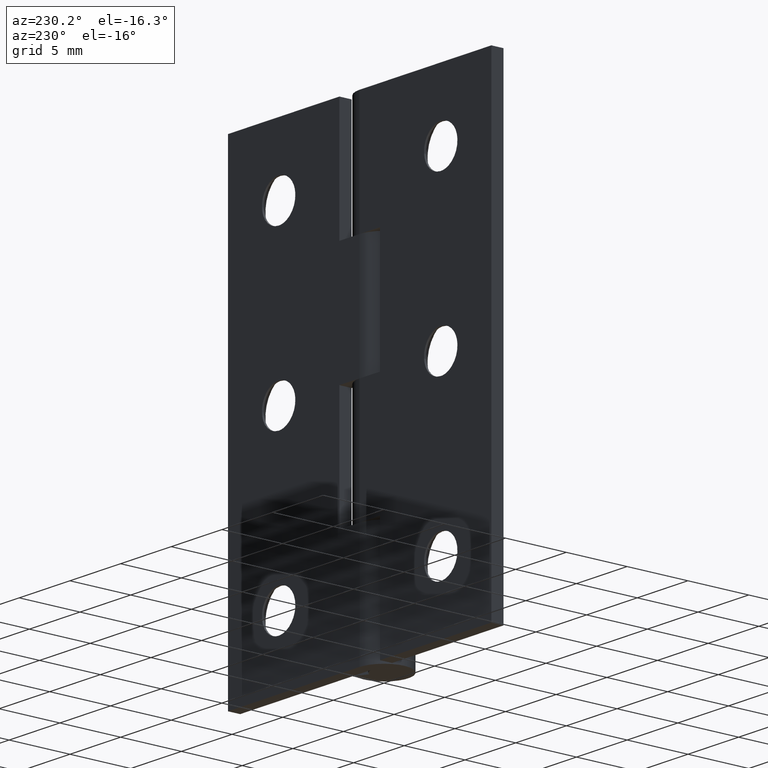
[diagram: clean part render]
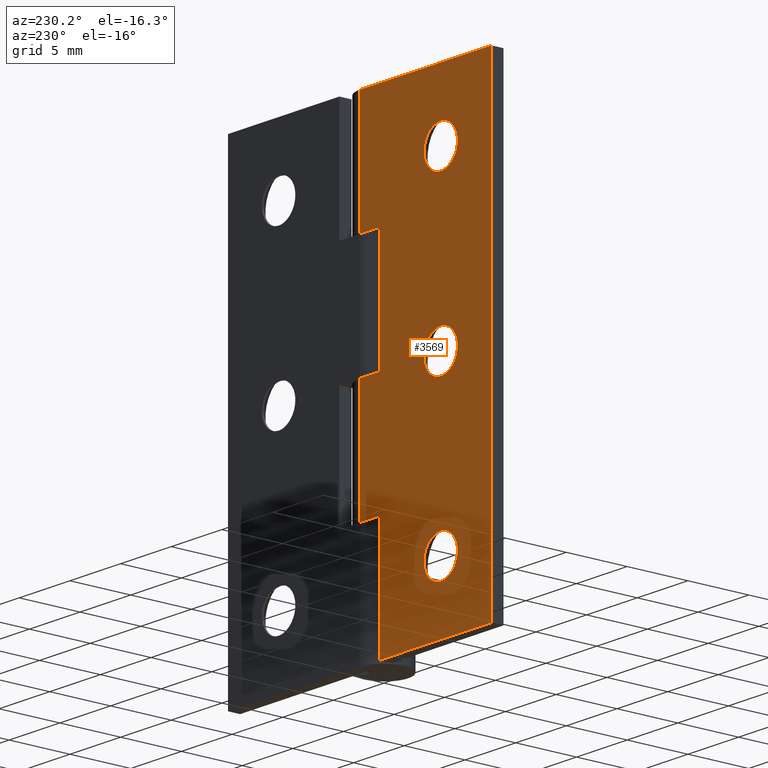
[diagram: same view with one face highlighted and labeled with its STEP entity id]
A machine part, auxiliary view. The second image highlights one B-rep face of the part: STEP entity #3569.
In plain terms, the highlighted face is a freeform B-spline surface patch.
Its self-contained STEP definition (entity closure, byte-faithful):
#2228=CARTESIAN_POINT('',(-6.355086399345368,2.0,32.370542491985169));
#2229=VERTEX_POINT('',#2228);
#2235=CARTESIAN_POINT('',(-8.0,2.0,30.850000000000001));
#2236=VERTEX_POINT('',#2235);
#2237=CARTESIAN_POINT('',(-8.0,2.0,30.850000000000001));
#2238=CARTESIAN_POINT('',(-6.474755688882801,2.000000000000000,30.850000000000012));
#2239=CARTESIAN_POINT('',(-6.355086399345368,2.000000000000000,32.370542491985169));
#2247=(BOUNDED_CURVE()B_SPLINE_CURVE(2,(#2237,#2238,#2239),.UNSPECIFIED.,.F.,.U.)B_SPLINE_CURVE_WITH_KNOTS((3,3),(0.0,0.236331300619451),.UNSPECIFIED.)CURVE()GEOMETRIC_REPRESENTATION_ITEM()RATIONAL_B_SPLINE_CURVE((1.0,0.723120658620797,0.969723356144027))REPRESENTATION_ITEM(''));
#2248=EDGE_CURVE('',#2236,#2229,#2247,.T.);
#2250=CARTESIAN_POINT('',(-9.644913600654633,2.0,32.629457508014838));
#2251=VERTEX_POINT('',#2250);
#2252=CARTESIAN_POINT('',(-9.644913600654633,2.0,32.629457508014838));
#2253=CARTESIAN_POINT('',(-9.650000000000000,2.000000000000000,32.564828676626838));
#2254=CARTESIAN_POINT('',(-9.650000000000000,2.0,32.500000000000000));
#2255=CARTESIAN_POINT('',(-9.650000000000000,2.000000000000000,30.850000000000009));
#2256=CARTESIAN_POINT('',(-8.0,2.0,30.850000000000001));
#2264=(BOUNDED_CURVE()B_SPLINE_CURVE(2,(#2252,#2253,#2254,#2255,#2256),.UNSPECIFIED.,.F.,.U.)B_SPLINE_CURVE_WITH_KNOTS((3,2,3),(0.736331300619451,0.750000000000000,1.0),.UNSPECIFIED.)CURVE()GEOMETRIC_REPRESENTATION_ITEM()RATIONAL_B_SPLINE_CURVE((0.969723356144025,0.983986122565750,1.0,0.707106781186548,1.0))REPRESENTATION_ITEM(''));
#2265=EDGE_CURVE('',#2251,#2236,#2264,.T.);
#2302=CARTESIAN_POINT('',(-8.0,2.0,34.149999999999999));
#2303=VERTEX_POINT('',#2302);
#2304=CARTESIAN_POINT('',(-8.0,2.0,34.149999999999999));
#2305=CARTESIAN_POINT('',(-9.525244311117190,2.000000000000000,34.150000000000006));
#2306=CARTESIAN_POINT('',(-9.644913600654633,2.000000000000000,32.629457508014838));
#2314=(BOUNDED_CURVE()B_SPLINE_CURVE(2,(#2304,#2305,#2306),.UNSPECIFIED.,.F.,.U.)B_SPLINE_CURVE_WITH_KNOTS((3,3),(0.500000000000000,0.736331300619450),.UNSPECIFIED.)CURVE()GEOMETRIC_REPRESENTATION_ITEM()RATIONAL_B_SPLINE_CURVE((1.0,0.723120658620798,0.969723356144024))REPRESENTATION_ITEM(''));
#2315=EDGE_CURVE('',#2303,#2251,#2314,.T.);
#2317=CARTESIAN_POINT('',(-6.355086399345368,2.000000000000000,32.370542491985162));
#2318=CARTESIAN_POINT('',(-6.350000000000000,2.000000000000000,32.435171323373169));
#2319=CARTESIAN_POINT('',(-6.350000000000000,2.0,32.500000000000000));
#2320=CARTESIAN_POINT('',(-6.350000000000000,2.000000000000000,34.149999999999999));
#2321=CARTESIAN_POINT('',(-8.0,2.0,34.149999999999999));
#2329=(BOUNDED_CURVE()B_SPLINE_CURVE(2,(#2317,#2318,#2319,#2320,#2321),.UNSPECIFIED.,.F.,.U.)B_SPLINE_CURVE_WITH_KNOTS((3,2,3),(0.236331300619451,0.250000000000000,0.500000000000000),.UNSPECIFIED.)CURVE()GEOMETRIC_REPRESENTATION_ITEM()RATIONAL_B_SPLINE_CURVE((0.969723356144026,0.983986122565750,1.0,0.707106781186548,1.0))REPRESENTATION_ITEM(''));
#2330=EDGE_CURVE('',#2229,#2303,#2329,.T.);
#2556=CARTESIAN_POINT('',(-6.355086399345368,2.0,18.870542491985169));
#2557=VERTEX_POINT('',#2556);
#2563=CARTESIAN_POINT('',(-8.0,2.0,17.350000000000001));
#2564=VERTEX_POINT('',#2563);
#2565=CARTESIAN_POINT('',(-8.0,2.0,17.350000000000001));
#2566=CARTESIAN_POINT('',(-6.474755688882805,2.000000000000000,17.349999999999998));
#2567=CARTESIAN_POINT('',(-6.355086399345368,2.0,18.870542491985169));
#2575=(BOUNDED_CURVE()B_SPLINE_CURVE(2,(#2565,#2566,#2567),.UNSPECIFIED.,.F.,.U.)B_SPLINE_CURVE_WITH_KNOTS((3,3),(0.0,0.236331300619451),.UNSPECIFIED.)CURVE()GEOMETRIC_REPRESENTATION_ITEM()RATIONAL_B_SPLINE_CURVE((1.0,0.723120658620798,0.969723356144025))REPRESENTATION_ITEM(''));
#2576=EDGE_CURVE('',#2564,#2557,#2575,.T.);
#2578=CARTESIAN_POINT('',(-9.644913600654633,2.0,19.129457508014831));
#2579=VERTEX_POINT('',#2578);
#2580=CARTESIAN_POINT('',(-9.644913600654633,2.0,19.129457508014834));
#2581=CARTESIAN_POINT('',(-9.650000000000000,2.000000000000000,19.064828676626842));
#2582=CARTESIAN_POINT('',(-9.650000000000000,2.0,19.0));
#2583=CARTESIAN_POINT('',(-9.650000000000000,2.000000000000000,17.350000000000001));
#2584=CARTESIAN_POINT('',(-8.0,2.0,17.350000000000001));
#2592=(BOUNDED_CURVE()B_SPLINE_CURVE(2,(#2580,#2581,#2582,#2583,#2584),.UNSPECIFIED.,.F.,.U.)B_SPLINE_CURVE_WITH_KNOTS((3,2,3),(0.736331300619451,0.750000000000000,1.0),.UNSPECIFIED.)CURVE()GEOMETRIC_REPRESENTATION_ITEM()RATIONAL_B_SPLINE_CURVE((0.969723356144025,0.983986122565750,1.0,0.707106781186548,1.0))REPRESENTATION_ITEM(''));
#2593=EDGE_CURVE('',#2579,#2564,#2592,.T.);
#2630=CARTESIAN_POINT('',(-8.0,2.0,20.649999999999999));
#2631=VERTEX_POINT('',#2630);
#2632=CARTESIAN_POINT('',(-8.0,2.0,20.649999999999999));
#2633=CARTESIAN_POINT('',(-9.525244311117190,2.000000000000000,20.650000000000006));
#2634=CARTESIAN_POINT('',(-9.644913600654633,2.000000000000000,19.129457508014838));
#2642=(BOUNDED_CURVE()B_SPLINE_CURVE(2,(#2632,#2633,#2634),.UNSPECIFIED.,.F.,.U.)B_SPLINE_CURVE_WITH_KNOTS((3,3),(0.500000000000000,0.736331300619450),.UNSPECIFIED.)CURVE()GEOMETRIC_REPRESENTATION_ITEM()RATIONAL_B_SPLINE_CURVE((1.0,0.723120658620798,0.969723356144024))REPRESENTATION_ITEM(''));
#2643=EDGE_CURVE('',#2631,#2579,#2642,.T.);
#2645=CARTESIAN_POINT('',(-6.355086399345368,2.000000000000000,18.870542491985166));
#2646=CARTESIAN_POINT('',(-6.350000000000000,2.000000000000000,18.935171323373165));
#2647=CARTESIAN_POINT('',(-6.350000000000000,2.0,19.0));
#2648=CARTESIAN_POINT('',(-6.350000000000000,2.000000000000000,20.650000000000002));
#2649=CARTESIAN_POINT('',(-8.0,2.0,20.649999999999999));
#2657=(BOUNDED_CURVE()B_SPLINE_CURVE(2,(#2645,#2646,#2647,#2648,#2649),.UNSPECIFIED.,.F.,.U.)B_SPLINE_CURVE_WITH_KNOTS((3,2,3),(0.236331300619451,0.250000000000000,0.500000000000000),.UNSPECIFIED.)CURVE()GEOMETRIC_REPRESENTATION_ITEM()RATIONAL_B_SPLINE_CURVE((0.969723356144026,0.983986122565750,1.0,0.707106781186548,1.0))REPRESENTATION_ITEM(''));
#2658=EDGE_CURVE('',#2557,#2631,#2657,.T.);
#2903=CARTESIAN_POINT('',(-6.361534281510007,2.0,5.694756487268258));
#2904=VERTEX_POINT('',#2903);
#2910=CARTESIAN_POINT('',(-8.0,2.0,3.850000000000000));
#2911=VERTEX_POINT('',#2910);
#2912=CARTESIAN_POINT('',(-6.361534281510007,2.000000000000000,5.694756487268258));
#2913=CARTESIAN_POINT('',(-6.350000000000000,2.000000000000000,5.597719797511152));
#2914=CARTESIAN_POINT('',(-6.350000000000000,2.0,5.500000000000000));
#2915=CARTESIAN_POINT('',(-6.350000000000000,2.000000000000000,3.850000000000000));
#2916=CARTESIAN_POINT('',(-8.0,2.0,3.850000000000000));
#2924=(BOUNDED_CURVE()B_SPLINE_CURVE(2,(#2912,#2913,#2914,#2915,#2916),.UNSPECIFIED.,.F.,.U.)B_SPLINE_CURVE_WITH_KNOTS((3,2,3),(0.229562473498191,0.250000000000000,0.500000000000000),.UNSPECIFIED.)CURVE()GEOMETRIC_REPRESENTATION_ITEM()RATIONAL_B_SPLINE_CURVE((0.956026754153676,0.976055948313199,1.0,0.707106781186548,1.0))REPRESENTATION_ITEM(''));
#2925=EDGE_CURVE('',#2904,#2911,#2924,.T.);
#2927=CARTESIAN_POINT('',(-9.646922417390396,2.0,5.399269909674544));
#2928=VERTEX_POINT('',#2927);
#2929=CARTESIAN_POINT('',(-8.0,2.0,3.850000000000000));
#2930=CARTESIAN_POINT('',(-9.552165010218884,2.000000000000000,3.849999999999998));
#2931=CARTESIAN_POINT('',(-9.646922417390396,2.000000000000000,5.399269909674544));
#2939=(BOUNDED_CURVE()B_SPLINE_CURVE(2,(#2929,#2930,#2931),.UNSPECIFIED.,.F.,.U.)B_SPLINE_CURVE_WITH_KNOTS((3,3),(0.500000000000000,0.739332962222494),.UNSPECIFIED.)CURVE()GEOMETRIC_REPRESENTATION_ITEM()RATIONAL_B_SPLINE_CURVE((1.0,0.719603993305982,0.976072041631464))REPRESENTATION_ITEM(''));
#2940=EDGE_CURVE('',#2911,#2928,#2939,.T.);
#2974=CARTESIAN_POINT('',(-8.0,2.0,7.150000000000000));
#2975=VERTEX_POINT('',#2974);
#2976=CARTESIAN_POINT('',(-9.646922417390396,2.000000000000000,5.399269909674545));
#2977=CARTESIAN_POINT('',(-9.650000000000000,2.000000000000000,5.449587940464125));
#2978=CARTESIAN_POINT('',(-9.650000000000000,2.0,5.500000000000000));
#2979=CARTESIAN_POINT('',(-9.650000000000000,2.000000000000000,7.150000000000002));
#2980=CARTESIAN_POINT('',(-8.0,2.0,7.150000000000000));
#2988=(BOUNDED_CURVE()B_SPLINE_CURVE(2,(#2976,#2977,#2978,#2979,#2980),.UNSPECIFIED.,.F.,.U.)B_SPLINE_CURVE_WITH_KNOTS((3,2,3),(0.739332962222493,0.750000000000000,1.0),.UNSPECIFIED.)CURVE()GEOMETRIC_REPRESENTATION_ITEM()RATIONAL_B_SPLINE_CURVE((0.976072041631463,0.987502787880566,1.0,0.707106781186548,1.0))REPRESENTATION_ITEM(''));
#2989=EDGE_CURVE('',#2928,#2975,#2988,.T.);
#2991=CARTESIAN_POINT('',(-8.0,2.0,7.150000000000000));
#2992=CARTESIAN_POINT('',(-6.534512032332657,2.0,7.150000000000002));
#2993=CARTESIAN_POINT('',(-6.361534281510007,2.000000000000000,5.694756487268258));
#3001=(BOUNDED_CURVE()B_SPLINE_CURVE(2,(#2991,#2992,#2993),.UNSPECIFIED.,.F.,.U.)B_SPLINE_CURVE_WITH_KNOTS((3,3),(0.0,0.229562473498191),.UNSPECIFIED.)CURVE()GEOMETRIC_REPRESENTATION_ITEM()RATIONAL_B_SPLINE_CURVE((1.0,0.731050832873348,0.956026754153676))REPRESENTATION_ITEM(''));
#3002=EDGE_CURVE('',#2975,#2904,#3001,.T.);
#3013=CARTESIAN_POINT('',(-2.0,2.0,19.0));
#3014=VERTEX_POINT('',#3013);
#3015=CARTESIAN_POINT('',(0.0,2.0,19.0));
#3016=VERTEX_POINT('',#3015);
#3017=CARTESIAN_POINT('',(-2.0,2.0,19.0));
#3018=CARTESIAN_POINT('',(0.0,2.0,19.0));
#3019=QUASI_UNIFORM_CURVE('',1,(#3017,#3018),.UNSPECIFIED.,.F.,.U.);
#3020=EDGE_CURVE('',#3014,#3016,#3019,.T.);
#3093=CARTESIAN_POINT('',(0.0,2.0,28.500000000000000));
#3094=VERTEX_POINT('',#3093);
#3149=CARTESIAN_POINT('',(-2.0,2.0,28.500000000000000));
#3150=VERTEX_POINT('',#3149);
#3156=CARTESIAN_POINT('',(0.0,2.0,28.500000000000000));
#3157=CARTESIAN_POINT('',(-2.0,2.0,28.500000000000000));
#3158=QUASI_UNIFORM_CURVE('',1,(#3156,#3157),.UNSPECIFIED.,.F.,.U.);
#3159=EDGE_CURVE('',#3094,#3150,#3158,.T.);
#3175=CARTESIAN_POINT('',(-2.0,2.0,28.500000000000000));
#3176=CARTESIAN_POINT('',(-2.0,2.0,19.0));
#3177=QUASI_UNIFORM_CURVE('',1,(#3175,#3176),.UNSPECIFIED.,.F.,.U.);
#3178=EDGE_CURVE('',#3150,#3014,#3177,.T.);
#3191=CARTESIAN_POINT('',(0.0,2.0,9.499999999999801));
#3192=VERTEX_POINT('',#3191);
#3247=CARTESIAN_POINT('',(-2.0,2.0,9.499999999999801));
#3248=VERTEX_POINT('',#3247);
#3254=CARTESIAN_POINT('',(0.0,2.0,9.499999999999801));
#3255=CARTESIAN_POINT('',(-2.0,2.0,9.499999999999801));
#3256=QUASI_UNIFORM_CURVE('',1,(#3254,#3255),.UNSPECIFIED.,.F.,.U.);
#3257=EDGE_CURVE('',#3192,#3248,#3256,.T.);
#3274=CARTESIAN_POINT('',(-2.0,2.0,0.0));
#3275=VERTEX_POINT('',#3274);
#3281=CARTESIAN_POINT('',(-2.0,2.0,9.499999999999801));
#3282=CARTESIAN_POINT('',(-2.0,2.0,0.0));
#3283=QUASI_UNIFORM_CURVE('',1,(#3281,#3282),.UNSPECIFIED.,.F.,.U.);
#3284=EDGE_CURVE('',#3248,#3275,#3283,.T.);
#3304=CARTESIAN_POINT('',(1.224606E-016,2.0,37.999992000000049));
#3305=VERTEX_POINT('',#3304);
#3325=CARTESIAN_POINT('',(-13.0,2.0,37.999992000000049));
#3326=VERTEX_POINT('',#3325);
#3327=CARTESIAN_POINT('',(1.224606E-016,2.0,37.999992000000049));
#3328=CARTESIAN_POINT('',(-13.0,2.0,37.999992000000049));
#3329=QUASI_UNIFORM_CURVE('',1,(#3327,#3328),.UNSPECIFIED.,.F.,.U.);
#3330=EDGE_CURVE('',#3305,#3326,#3329,.T.);
#3373=CARTESIAN_POINT('',(-13.0,2.0,0.0));
#3374=VERTEX_POINT('',#3373);
#3388=CARTESIAN_POINT('',(-13.0,2.0,37.999992000000049));
#3389=CARTESIAN_POINT('',(-13.0,2.0,0.0));
#3390=QUASI_UNIFORM_CURVE('',1,(#3388,#3389),.UNSPECIFIED.,.F.,.U.);
#3391=EDGE_CURVE('',#3326,#3374,#3390,.T.);
#3401=CARTESIAN_POINT('',(-2.0,2.0,0.0));
#3402=CARTESIAN_POINT('',(-13.0,2.0,0.0));
#3403=QUASI_UNIFORM_CURVE('',1,(#3401,#3402),.UNSPECIFIED.,.F.,.U.);
#3404=EDGE_CURVE('',#3275,#3374,#3403,.T.);
#3526=CARTESIAN_POINT('',(-13.649349974803480,2.0,39.898091883465433));
#3527=CARTESIAN_POINT('',(-13.649349974803480,2.0,-1.898100562958193));
#3528=CARTESIAN_POINT('',(0.649350323490649,2.0,39.898091883465433));
#3529=CARTESIAN_POINT('',(0.649350323490649,2.0,-1.898100562958193));
#3530=B_SPLINE_SURFACE_WITH_KNOTS('',1,1,((#3526,#3528),(#3527,#3529)),.UNSPECIFIED.,.F.,.F.,.U.,(2,2),(2,2),(0.0,41.796192446423618),(0.0,14.298700298294129),.UNSPECIFIED.);
#3531=ORIENTED_EDGE('',*,*,#3159,.T.);
#3532=ORIENTED_EDGE('',*,*,#3178,.T.);
#3533=ORIENTED_EDGE('',*,*,#3020,.T.);
#3534=CARTESIAN_POINT('',(0.0,2.0,19.0));
#3535=CARTESIAN_POINT('',(0.0,2.0,9.499999999999801));
#3536=QUASI_UNIFORM_CURVE('',1,(#3534,#3535),.UNSPECIFIED.,.F.,.U.);
#3537=EDGE_CURVE('',#3016,#3192,#3536,.T.);
#3538=ORIENTED_EDGE('',*,*,#3537,.T.);
#3539=ORIENTED_EDGE('',*,*,#3257,.T.);
#3540=ORIENTED_EDGE('',*,*,#3284,.T.);
#3541=ORIENTED_EDGE('',*,*,#3404,.T.);
#3542=ORIENTED_EDGE('',*,*,#3391,.F.);
#3543=ORIENTED_EDGE('',*,*,#3330,.F.);
#3544=CARTESIAN_POINT('',(1.224606E-016,2.0,37.999992000000049));
#3545=CARTESIAN_POINT('',(0.0,2.0,28.500000000000000));
#3546=QUASI_UNIFORM_CURVE('',1,(#3544,#3545),.UNSPECIFIED.,.F.,.U.);
#3547=EDGE_CURVE('',#3305,#3094,#3546,.T.);
#3548=ORIENTED_EDGE('',*,*,#3547,.T.);
#3549=EDGE_LOOP('',(#3531,#3532,#3533,#3538,#3539,#3540,#3541,#3542,#3543,#3548));
#3550=FACE_OUTER_BOUND('',#3549,.T.);
#3551=ORIENTED_EDGE('',*,*,#2940,.F.);
#3552=ORIENTED_EDGE('',*,*,#2925,.F.);
#3553=ORIENTED_EDGE('',*,*,#3002,.F.);
#3554=ORIENTED_EDGE('',*,*,#2989,.F.);
#3555=EDGE_LOOP('',(#3551,#3552,#3553,#3554));
#3556=FACE_BOUND('',#3555,.T.);
#3557=ORIENTED_EDGE('',*,*,#2643,.T.);
#3558=ORIENTED_EDGE('',*,*,#2593,.T.);
#3559=ORIENTED_EDGE('',*,*,#2576,.T.);
#3560=ORIENTED_EDGE('',*,*,#2658,.T.);
#3561=EDGE_LOOP('',(#3557,#3558,#3559,#3560));
#3562=FACE_BOUND('',#3561,.T.);
#3563=ORIENTED_EDGE('',*,*,#2315,.T.);
#3564=ORIENTED_EDGE('',*,*,#2265,.T.);
#3565=ORIENTED_EDGE('',*,*,#2248,.T.);
#3566=ORIENTED_EDGE('',*,*,#2330,.T.);
#3567=EDGE_LOOP('',(#3563,#3564,#3565,#3566));
#3568=FACE_BOUND('',#3567,.T.);
#3569=ADVANCED_FACE('',(#3550,#3556,#3562,#3568),#3530,.F.);